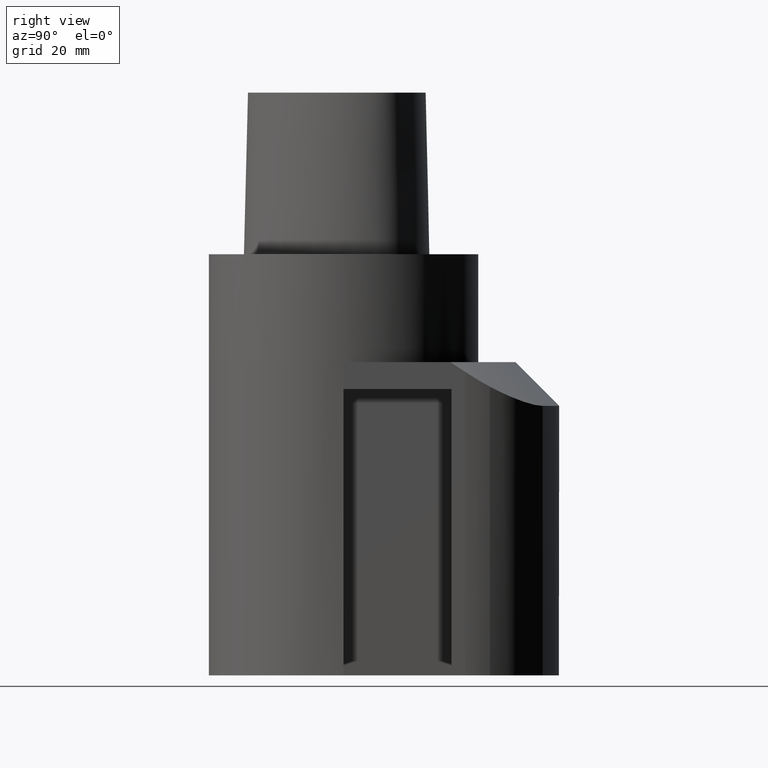
[diagram: clean part render]
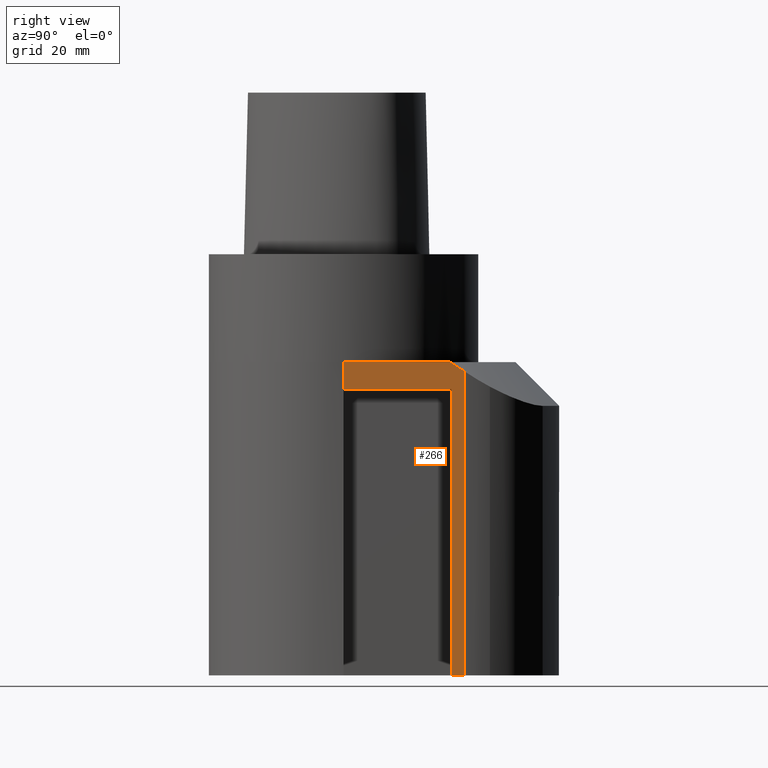
[diagram: same view with one face highlighted and labeled with its STEP entity id]
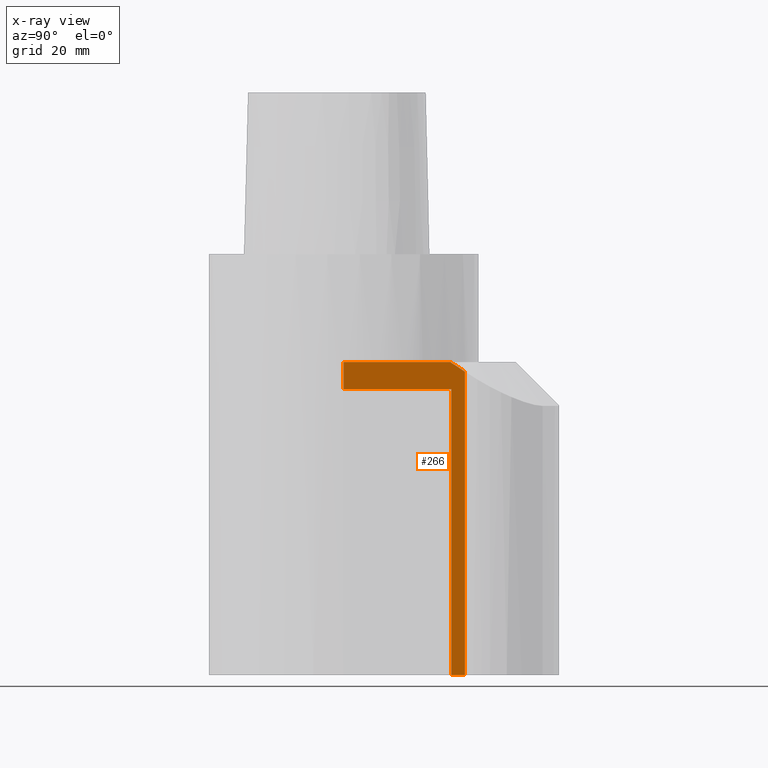
[diagram: x-ray of the same camera — body ghosted, the highlighted face saturated]
A machine part, right view. The second image highlights one B-rep face of the part: STEP entity #266.
The next image is the same camera in x-ray: the body ghosted, the highlighted face saturated — about 0% of this face is hidden behind the body in this view.
In plain terms, the highlighted planar face has unit normal (1, -0, 0).
Its self-contained STEP definition (entity closure, byte-faithful):
#123=EDGE_CURVE('240[2]',#335,#336,#337,.T.);
#133=EDGE_CURVE('240[2]',#350,#351,#352,.T.);
#139=EDGE_CURVE('240[2]',#360,#336,#361,.T.);
#148=EDGE_CURVE('240[2]',#373,#360,#374,.T.);
#153=EDGE_CURVE('240[2]',#351,#335,#380,.T.);
#162=EDGE_CURVE('240[2]',#393,#373,#394,.T.);
#178=EDGE_CURVE('240[2]',#350,#393,#417,.F.);
#266=ADVANCED_FACE('240[2]',(#523),#524,.T.);
#335=VERTEX_POINT('',#704);
#336=VERTEX_POINT('',#705);
#337=LINE('',#706,#707);
#350=VERTEX_POINT('',#724);
#351=VERTEX_POINT('',#725);
#352=LINE('',#726,#727);
#360=VERTEX_POINT('',#739);
#361=LINE('',#740,#741);
#373=VERTEX_POINT('',#817);
#374=LINE('',#818,#819);
#380=CIRCLE('',#827,150.651933760662);
#393=VERTEX_POINT('',#853);
#394=LINE('',#854,#855);
#417=LINE('',#891,#892);
#523=FACE_OUTER_BOUND('',#1482,.T.);
#524=PLANE('',#1483);
#704=CARTESIAN_POINT('',(40.0000000000009,31.6385840391118,-32.0000000000028));
#705=CARTESIAN_POINT('',(40.0000000000009,8.5265128291212E-013,-32.000000000002));
#706=CARTESIAN_POINT('',(40.0000000000009,31.6385840391118,-32.0000000000025));
#707=VECTOR('',#1648,31.6385840391109);
#724=CARTESIAN_POINT('',(40.0000000000009,36.0000000000009,-125.000000000003));
#725=CARTESIAN_POINT('',(40.0000000000009,36.0000000000009,-34.8144961882987));
#726=CARTESIAN_POINT('',(40.0000000000009,36.0000000000009,-124.000000000002));
#727=VECTOR('',#1669,89.1855038117033);
#739=CARTESIAN_POINT('',(40.0000000000009,2.8421709430404E-013,-40.0000000000027));
#740=CARTESIAN_POINT('',(40.0000000000009,8.5265128291212E-013,-40.0000000000027));
#741=VECTOR('',#1674,8.0000000000007);
#817=CARTESIAN_POINT('',(40.0000000000009,32.0000000000007,-40.0000000000027));
#818=CARTESIAN_POINT('',(40.0000000000009,32.0000000000007,-40.0000000000027));
#819=VECTOR('',#1685,32.0000000000004);
#827=AXIS2_PLACEMENT_3D('',#1697,#1698,#1699);
#853=CARTESIAN_POINT('',(40.0000000000009,32.0000000000007,-125.000000000003));
#854=CARTESIAN_POINT('',(40.0000000000009,32.0000000000007,-124.000000000002));
#855=VECTOR('',#1711,83.9999999999993);
#891=CARTESIAN_POINT('',(40.0000000000009,25.0000000000003,-125.000000000003));
#892=VECTOR('',#1723,1.0);
#1482=EDGE_LOOP('',(#1857,#1858,#1859,#1860,#1861,#1862,#1863));
#1483=AXIS2_PLACEMENT_3D('',#1864,#1865,#1866);
#1648=DIRECTION('',(0.0,-1.0,0.0));
#1669=DIRECTION('',(0.0,0.0,1.0));
#1674=DIRECTION('',(0.0,0.0,1.0));
#1685=DIRECTION('',(0.0,-1.0,0.0));
#1697=CARTESIAN_POINT('',(39.9999999999744,-47.8549702515552,-159.971793658073));
#1698=DIRECTION('',(1.0,-9.3994254394356E-014,-1.48811651366276E-013));
#1699=DIRECTION('',(1.75946958405353E-013,0.55661396543888,0.830771264234871));
#1711=DIRECTION('',(0.0,0.0,1.0));
#1723=DIRECTION('',(0.0,1.0,0.0));
#1857=ORIENTED_EDGE('',*,*,#153,.T.);
#1858=ORIENTED_EDGE('',*,*,#123,.T.);
#1859=ORIENTED_EDGE('',*,*,#139,.F.);
#1860=ORIENTED_EDGE('',*,*,#148,.F.);
#1861=ORIENTED_EDGE('',*,*,#162,.F.);
#1862=ORIENTED_EDGE('',*,*,#178,.F.);
#1863=ORIENTED_EDGE('',*,*,#133,.T.);
#1864=CARTESIAN_POINT('',(40.0000000000009,18.0000000000009,-125.000000000003));
#1865=DIRECTION('',(1.0,-0.0,0.0));
#1866=DIRECTION('',(0.0,1.0,0.0));